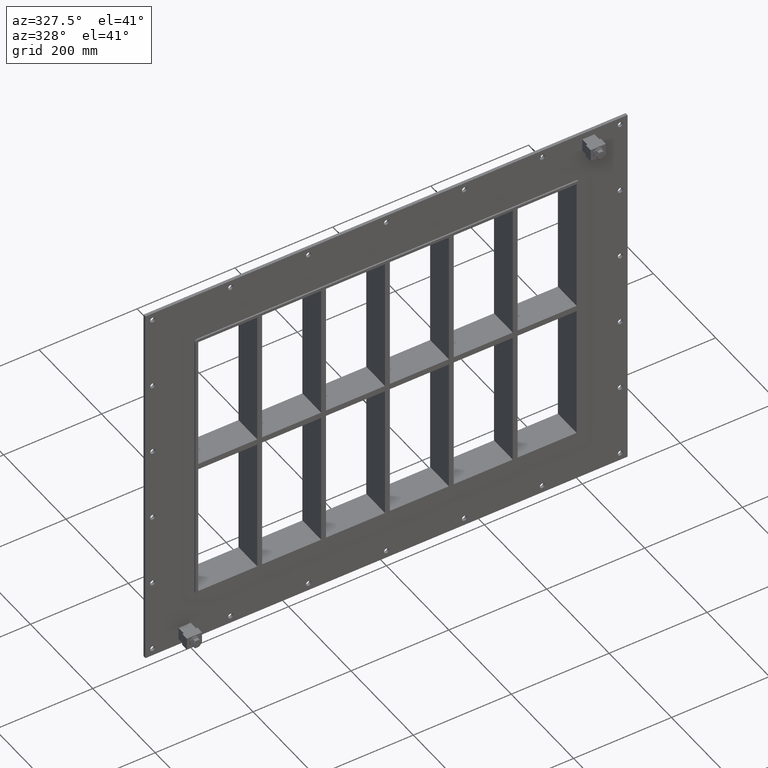
[diagram: clean part render]
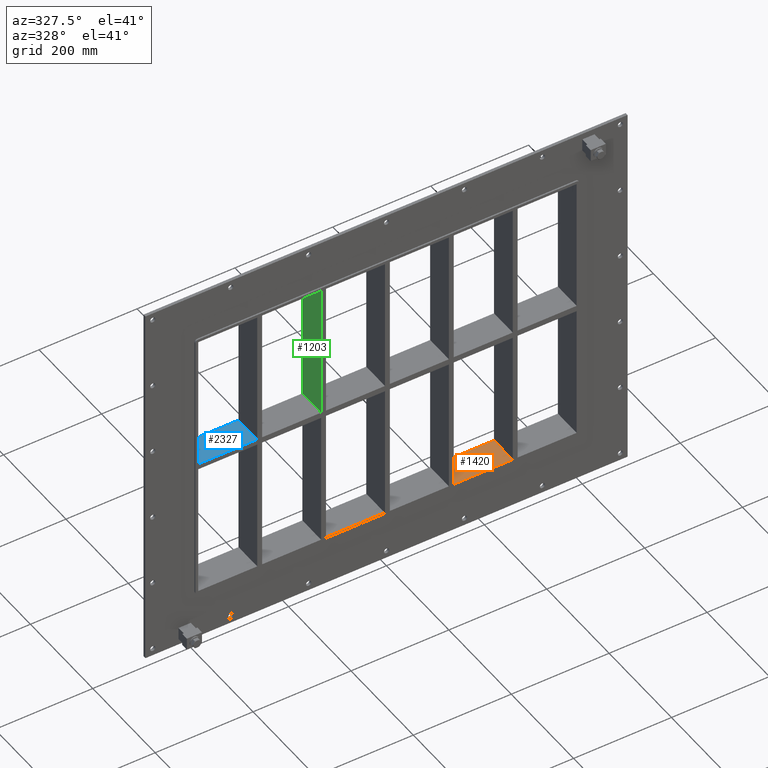
[diagram: same view with three faces highlighted in distinct colors, each labeled with its STEP entity id]
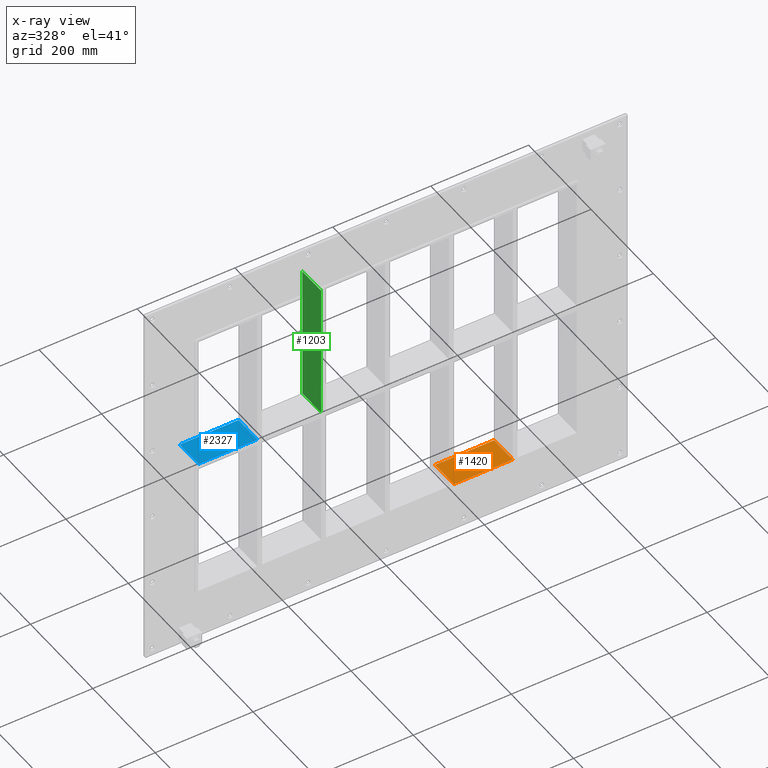
[diagram: x-ray of the same camera — body ghosted, the three highlighted faces saturated]
A machine part, auxiliary view with three faces highlighted in distinct colors.
The next image is the same camera in x-ray (body ghosted, the three faces saturated) — at least one of them is partly hidden behind the body in this view.
Their STEP definitions:

[orange] entity #1420 — the highlighted planar face has unit normal (0, 0, -1).
#739=CARTESIAN_POINT('',(256.00000000000114,57.0,-283.99999999999989));
#740=VERTEX_POINT('',#739);
#747=CARTESIAN_POINT('',(256.00000000000114,-3.0,-283.99999999999989));
#748=VERTEX_POINT('',#747);
#749=CARTESIAN_POINT('',(256.00000000000108,-3.0,-283.99999999999989));
#750=DIRECTION('',(0.0,1.0,0.0));
#751=VECTOR('',#750,60.000000000000007);
#752=LINE('',#749,#751);
#753=EDGE_CURVE('',#748,#740,#752,.T.);
#979=CARTESIAN_POINT('',(135.49999999999642,-3.0,-283.9999999999817));
#980=VERTEX_POINT('',#979);
#987=CARTESIAN_POINT('',(135.49999999999642,57.0,-283.9999999999817));
#988=VERTEX_POINT('',#987);
#989=CARTESIAN_POINT('',(135.49999999999642,57.000000000000007,-283.99999999999989));
#990=DIRECTION('',(0.0,-1.0,0.0));
#991=VECTOR('',#990,60.000000000000007);
#992=LINE('',#989,#991);
#993=EDGE_CURVE('',#988,#980,#992,.T.);
#1399=CARTESIAN_POINT('',(386.50000000000006,0.0,-283.99999999999989));
#1400=DIRECTION('',(0.0,0.0,-1.0));
#1401=DIRECTION('',(-1.0,0.0,0.0));
#1402=AXIS2_PLACEMENT_3D('',#1399,#1400,#1401);
#1403=PLANE('',#1402);
#1404=ORIENTED_EDGE('',*,*,#753,.T.);
#1405=CARTESIAN_POINT('',(135.49999999999642,57.0,-283.99999999999989));
#1406=DIRECTION('',(1.0,0.0,0.0));
#1407=VECTOR('',#1406,120.50000000000472);
#1408=LINE('',#1405,#1407);
#1409=EDGE_CURVE('',#988,#740,#1408,.T.);
#1410=ORIENTED_EDGE('',*,*,#1409,.F.);
#1411=ORIENTED_EDGE('',*,*,#993,.T.);
#1412=CARTESIAN_POINT('',(256.00000000000114,-3.0,-283.99999999999989));
#1413=DIRECTION('',(-1.0,0.0,0.0));
#1414=VECTOR('',#1413,120.50000000000472);
#1415=LINE('',#1412,#1414);
#1416=EDGE_CURVE('',#748,#980,#1415,.T.);
#1417=ORIENTED_EDGE('',*,*,#1416,.F.);
#1418=EDGE_LOOP('',(#1404,#1410,#1411,#1417));
#1419=FACE_OUTER_BOUND('',#1418,.T.);
#1420=ADVANCED_FACE('',(#1419),#1403,.F.);

[blue] entity #2327 — the highlighted planar face has unit normal (0, 0, 1).
#1694=CARTESIAN_POINT('',(-386.49999999999739,-3.0,5.999999999999091));
#1695=VERTEX_POINT('',#1694);
#1712=CARTESIAN_POINT('',(-265.99999999999898,-3.0,5.999999999999091));
#1713=VERTEX_POINT('',#1712);
#1720=CARTESIAN_POINT('',(-386.49999999999739,-3.0,5.999999999999091));
#1721=DIRECTION('',(1.0,0.0,0.0));
#1722=VECTOR('',#1721,120.49999999999841);
#1723=LINE('',#1720,#1722);
#1724=EDGE_CURVE('',#1695,#1713,#1723,.T.);
#2038=CARTESIAN_POINT('',(-386.49999999999739,57.0,5.999999999999091));
#2039=VERTEX_POINT('',#2038);
#2040=CARTESIAN_POINT('',(-265.99999999999898,57.0,5.999999999999091));
#2041=VERTEX_POINT('',#2040);
#2042=CARTESIAN_POINT('',(-386.49999999999739,57.0,5.999999999999091));
#2043=DIRECTION('',(1.0,0.0,0.0));
#2044=VECTOR('',#2043,120.49999999999841);
#2045=LINE('',#2042,#2044);
#2046=EDGE_CURVE('',#2039,#2041,#2045,.T.);
#2306=CARTESIAN_POINT('',(-386.49999999999739,-3.0,5.999999999999091));
#2307=DIRECTION('',(0.0,0.0,1.0));
#2308=DIRECTION('',(1.0,0.0,0.0));
#2309=AXIS2_PLACEMENT_3D('',#2306,#2307,#2308);
#2310=PLANE('',#2309);
#2311=CARTESIAN_POINT('',(-265.99999999999898,57.0,5.999999999999091));
#2312=DIRECTION('',(0.0,-1.0,0.0));
#2313=VECTOR('',#2312,60.0);
#2314=LINE('',#2311,#2313);
#2315=EDGE_CURVE('',#2041,#1713,#2314,.T.);
#2316=ORIENTED_EDGE('',*,*,#2315,.F.);
#2317=ORIENTED_EDGE('',*,*,#2046,.F.);
#2318=CARTESIAN_POINT('',(-386.50000000000006,-3.0,5.999999999999091));
#2319=DIRECTION('',(0.0,1.0,0.0));
#2320=VECTOR('',#2319,60.000000000000007);
#2321=LINE('',#2318,#2320);
#2322=EDGE_CURVE('',#1695,#2039,#2321,.T.);
#2323=ORIENTED_EDGE('',*,*,#2322,.F.);
#2324=ORIENTED_EDGE('',*,*,#1724,.T.);
#2325=EDGE_LOOP('',(#2316,#2317,#2323,#2324));
#2326=FACE_OUTER_BOUND('',#2325,.T.);
#2327=ADVANCED_FACE('',(#2326),#2310,.T.);

[green] entity #1203 — the highlighted planar face has unit normal (-1, 0, 0).
#1164=CARTESIAN_POINT('',(-135.49999999999895,-3.0,-283.99999999999989));
#1165=DIRECTION('',(-1.0,0.0,0.0));
#1166=DIRECTION('',(0.0,0.0,1.0));
#1167=AXIS2_PLACEMENT_3D('',#1164,#1165,#1166);
#1168=PLANE('',#1167);
#1169=CARTESIAN_POINT('',(-135.49999999999898,-3.0,5.999999999999091));
#1170=VERTEX_POINT('',#1169);
#1171=CARTESIAN_POINT('',(-135.49999999999898,57.0,5.999999999999091));
#1172=VERTEX_POINT('',#1171);
#1173=CARTESIAN_POINT('',(-135.49999999999901,-3.0,5.999999999999091));
#1174=DIRECTION('',(0.0,1.0,0.0));
#1175=VECTOR('',#1174,60.0);
#1176=LINE('',#1173,#1175);
#1177=EDGE_CURVE('',#1170,#1172,#1176,.T.);
#1178=ORIENTED_EDGE('',*,*,#1177,.F.);
#1179=CARTESIAN_POINT('',(-135.49999999999901,-3.0,284.00000000000006));
#1180=VERTEX_POINT('',#1179);
#1181=CARTESIAN_POINT('',(-135.49999999999898,-3.0,5.999999999999091));
#1182=DIRECTION('',(0.0,0.0,1.0));
#1183=VECTOR('',#1182,278.00000000000102);
#1184=LINE('',#1181,#1183);
#1185=EDGE_CURVE('',#1170,#1180,#1184,.T.);
#1186=ORIENTED_EDGE('',*,*,#1185,.T.);
#1187=CARTESIAN_POINT('',(-135.49999999999901,57.0,284.00000000000006));
#1188=VERTEX_POINT('',#1187);
#1189=CARTESIAN_POINT('',(-135.49999999999903,57.000000000000007,284.0));
#1190=DIRECTION('',(0.0,-1.0,0.0));
#1191=VECTOR('',#1190,60.000000000000007);
#1192=LINE('',#1189,#1191);
#1193=EDGE_CURVE('',#1188,#1180,#1192,.T.);
#1194=ORIENTED_EDGE('',*,*,#1193,.F.);
#1195=CARTESIAN_POINT('',(-135.49999999999898,57.0,5.999999999999091));
#1196=DIRECTION('',(0.0,0.0,1.0));
#1197=VECTOR('',#1196,278.00000000000102);
#1198=LINE('',#1195,#1197);
#1199=EDGE_CURVE('',#1172,#1188,#1198,.T.);
#1200=ORIENTED_EDGE('',*,*,#1199,.F.);
#1201=EDGE_LOOP('',(#1178,#1186,#1194,#1200));
#1202=FACE_OUTER_BOUND('',#1201,.T.);
#1203=ADVANCED_FACE('',(#1202),#1168,.T.);